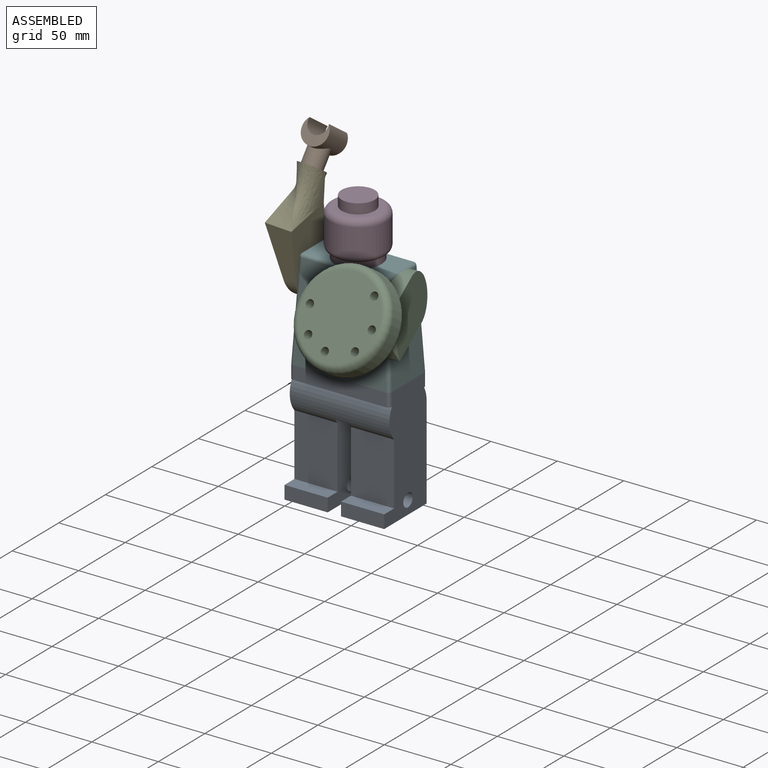
[diagram: assembled view]
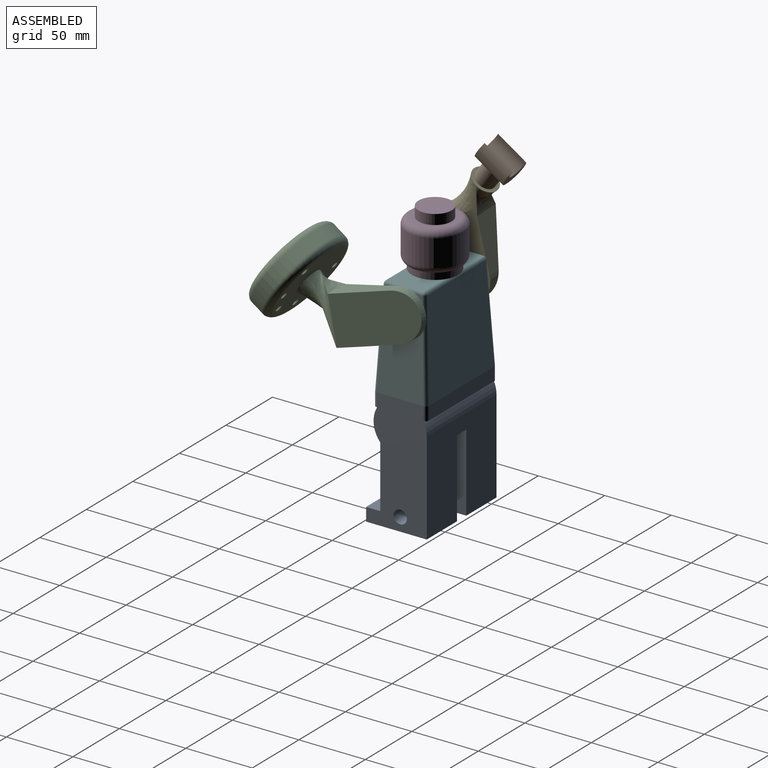
[diagram: assembled view, second angle]
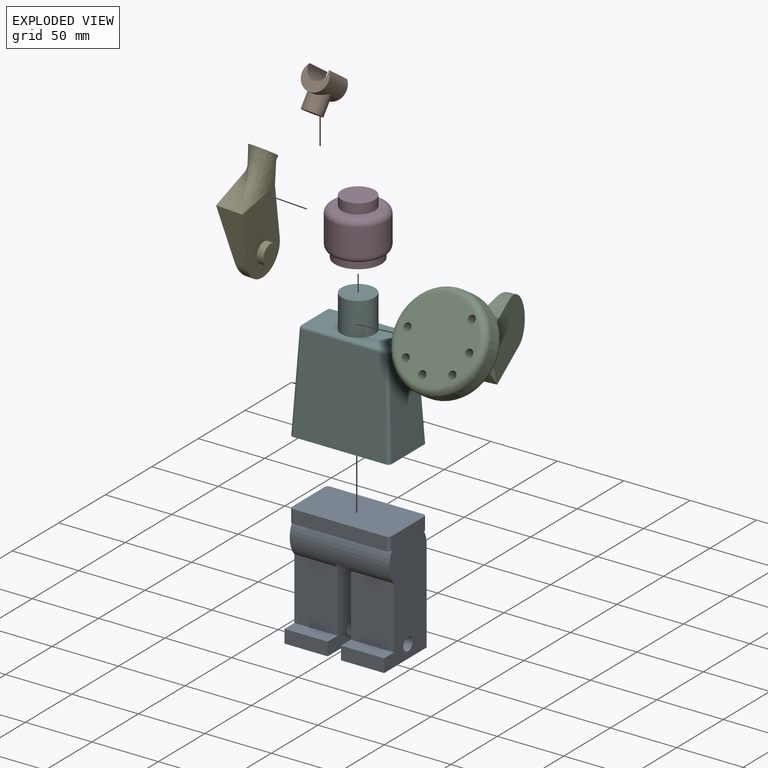
[diagram: exploded view]
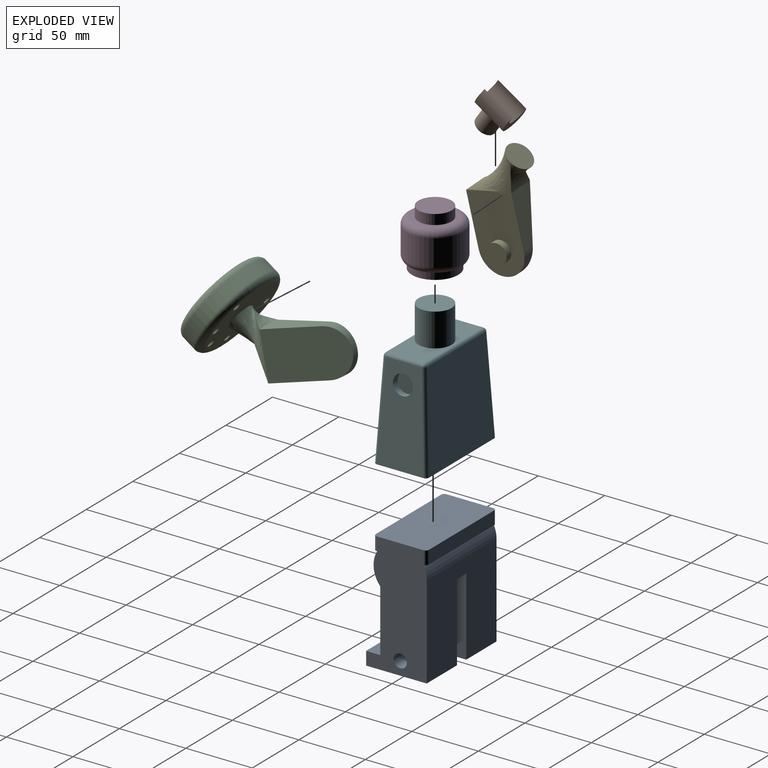
[diagram: exploded view, second angle]
ASSEMBLY  parts=6 mates=8
PART A: 27 faces, bbox 75x45.6x90 mm
  f0: plane 46.77x32.5mm, normal (0,-1,0), area 1520.1mm2, adj f1,f12,f19,f22
  f1: plane 32.5x10.62mm, normal (0,0,1), area 345.1mm2, adj f0,f2,f19,f22
  f2: plane 32.5x10mm, normal (0,-1,0), area 325mm2, adj f1,f3,f19,f22
  f3: plane 45.62x32.5mm, normal (0,0,-1), area 1482.6mm2, adj f2,f5,f19,f22
  f4: cylinder r=5mm len=32.5mm, axis (-1,0,0), area 1021mm2, adj f19,f22
  f5: plane 75x70mm, normal (0,1,0), area 4664.6mm2, adj f3,f6,f16,f18,f19,f20,f21,f22
  f6: cylinder r=20mm len=75mm, axis (-1,0,0), area 785.4mm2, adj f5,f7,f18,f19
  f7: plane 75x2.68mm, normal (0,0,-1), area 198.3mm2, adj f6,f8,f18,f19,f24,f26
  f8: plane 70x10mm, normal (0,1,0), area 700mm2, adj f7,f9,f24,f26
  f9: plane 75x40mm, normal (0,0,1), area 2994.6mm2, adj f8,f10,f18,f19,f23,f24,f25,f26
  f10: plane 70x10mm, normal (0,-1,0), area 700mm2, adj f9,f11,f23,f25
  f11: plane 75x2.68mm, normal (0,0,-1), area 198.3mm2, adj f10,f12,f18,f19,f23,f25
  f12: cylinder r=20mm len=75mm, axis (-1,0,0), area 1833.9mm2, adj f0,f11,f13,f18,f19,f20,f21,f22
  f13: plane 46.77x32.5mm, normal (0,-1,0), area 1520.1mm2, adj f12,f14,f18,f21
  f14: plane 32.5x10.62mm, normal (0,0,1), area 345.1mm2, adj f13,f15,f18,f21
  f15: plane 32.5x10mm, normal (0,-1,0), area 325mm2, adj f14,f16,f18,f21
  f16: plane 45.62x32.5mm, normal (0,0,-1), area 1482.6mm2, adj f5,f15,f18,f21
  f17: cylinder r=5mm len=32.5mm, axis (-1,0,0), area 1021mm2, adj f18,f21
  f18: plane 90x45.62mm, normal (1,0,0), area 3255.6mm2, adj f5,f6,f7,f9,f11,f12,f13,f14
  f19: plane 90x45.62mm, normal (-1,0,0), area 3255.6mm2, adj f0,f1,f2,f3,f4,f5,f6,f7
  f20: cylinder r=52.5mm len=37.11mm, axis (-1,0,0), area 379.4mm2, adj f5,f12,f21,f22
  f21: plane 62.5x45.62mm, normal (-1,0,0), area 2182.2mm2, adj f5,f12,f13,f14,f15,f16,f17,f20
  f22: plane 62.5x45.62mm, normal (1,0,0), area 2182.2mm2, adj f0,f1,f2,f3,f4,f5,f12,f20
  f23: cylinder r=2.5mm len=10mm, axis (0,0,-1), area 39.3mm2, adj f9,f10,f11,f19
  f24: cylinder r=2.5mm len=10mm, axis (0,0,1), area 39.3mm2, adj f7,f8,f9,f19
  f25: cylinder r=2.5mm len=10mm, axis (0,0,1), area 39.3mm2, adj f9,f10,f11,f18
  f26: cylinder r=2.5mm len=10mm, axis (0,0,-1), area 39.3mm2, adj f7,f8,f9,f18
PART B: 6 faces, bbox 20x25x27.8 mm
  f0: cylinder r=10mm len=25mm, axis (0,1,0), area 971.4mm2, adj f1,f2,f3,f4
  f1: cylinder r=7.5mm len=25mm, axis (0,1,0), area 683.8mm2, adj f0,f2,f3
  f2: plane 20x16.88mm, normal (0,-1,0), area 166.6mm2, adj f0,f1
  f3: plane 20x16.88mm, normal (0,1,0), area 166.6mm2, adj f0,f1
  f4: cylinder r=7.5mm len=15mm, axis (0,0,-1), area 591.2mm2, adj f0,f5
  f5: plane 15x15mm, normal (0,0,1), area 176.7mm2, adj f4
PART C: 22 faces, bbox 77.9x117.3x75.8 mm
  f0: plane 60x43.38mm, normal (0.72,0.69,0), area 2395.3mm2, adj f8,f9,f10,f11,f14,f16,f17,f18
  f1: plane 40x20mm, normal (-1,0,0), area 591.3mm2, adj f4,f6,f7,f8
  f2: cylinder r=7.5mm len=15mm, axis (0,0,-1), area 235.6mm2, adj f3,f6
  f3: plane 15x15mm, normal (0,0,-1), area 176.7mm2, adj f2
  f4: cylinder r=17.5mm len=35mm, axis (0,0,-1), area 366.1mm2, adj f1,f5,f6,f7
  f5: plane 40x20mm, normal (1,0,0), area 591.3mm2, adj f4,f6,f7,f10
  f6: plane 57.5x35mm, normal (0,0,-1), area 1704.3mm2, adj f1,f2,f4,f5,f11
  f7: plane 57.5x35mm, normal (0,0.25,0.97), area 1944mm2, adj f1,f4,f5,f9
  f8: bspline ~20.83x20mm, area 255.7mm2, adj f0,f1,f9,f11
  f9: bspline ~46.21x15mm, area 343mm2, adj f0,f7,f8,f10
  f10: bspline ~45.28x20.83mm, area 492.4mm2, adj f0,f5,f9,f11
  f11: bspline ~39.3x28.06mm, area 799.4mm2, adj f0,f6,f8,f10
  f12: cylinder r=35mm len=70mm, axis (0.72,0.69,0), area 2199.1mm2, adj f14,f15
  f13: plane 60x43.38mm, normal (-0.72,-0.69,0), area 2658mm2, adj f15,f16,f17,f18,f19,f20,f21
  f14: torus R=30mm, axis (-0.72,-0.69,0), area 1637.5mm2, adj f0,f12
  f15: torus R=30mm, axis (-0.72,-0.69,0), area 1637.5mm2, adj f12,f13
  f16: bspline ~18.12x17.94mm, area 345.7mm2, adj f0,f13
  f17: bspline ~18.12x17.95mm, area 345.7mm2, adj f0,f13
  f18: bspline ~18.11x17.95mm, area 345.7mm2, adj f0,f13
  f19: bspline ~18.12x17.95mm, area 345.7mm2, adj f0,f13
  f20: bspline ~18.11x17.95mm, area 345.7mm2, adj f0,f13
  f21: bspline ~18.12x17.94mm, area 345.7mm2, adj f0,f13
PART D: 10 faces, bbox 46x46x42.5 mm
  f0: cylinder r=17.5mm len=35mm, axis (0,0,-1), area 549.8mm2, adj f1,f6
  f1: plane 35x35mm, normal (0,0,-1), area 471.2mm2, adj f0,f8
  f2: cylinder r=21.25mm len=42.5mm, axis (0,0,-1), area 2691.6mm2, adj f6,f7
  f3: plane 32.5x32.5mm, normal (0,0,1), area 338.7mm2, adj f4,f7
  f4: cylinder r=12.5mm len=25mm, axis (0,0,-1), area 589mm2, adj f3,f5
  f5: plane 25x25mm, normal (0,0,1), area 490.9mm2, adj f4
  f6: torus R=16.25mm, axis (0,0,-1), area 825mm2, adj f0,f2
  f7: torus R=16.25mm, axis (0,0,1), area 959mm2, adj f2,f3
  f8: cylinder r=12.5mm len=30mm, axis (0,0,-1), area 2356.2mm2, adj f1,f9
  f9: plane 25x25mm, normal (0,0,-1), area 490.9mm2, adj f8
PART E: 12 faces, bbox 46.2x85.6x25 mm
  f0: plane 40x20mm, normal (-1,0,0), area 591.3mm2, adj f3,f5,f6,f8
  f1: cylinder r=7.5mm len=15mm, axis (0,0,1), area 235.6mm2, adj f2,f5
  f2: plane 15x15mm, normal (0,0,1), area 176.7mm2, adj f1
  f3: cylinder r=17.5mm len=35mm, axis (0,0,1), area 366.1mm2, adj f0,f4,f5,f6
  f4: plane 40x20mm, normal (1,0,0), area 591.3mm2, adj f3,f5,f6,f10
  f5: plane 57.5x35mm, normal (0,0,1), area 1704.3mm2, adj f0,f1,f3,f4,f11
  f6: plane 57.5x35mm, normal (0,0.25,-0.97), area 1944mm2, adj f0,f3,f4,f9
  f7: plane 20x14.46mm, normal (-0.72,-0.69,0), area 314.2mm2, adj f8,f9,f10,f11
  f8: bspline ~20.83x20mm, area 255.7mm2, adj f0,f7,f9,f11
  f9: bspline ~46.21x15mm, area 343mm2, adj f6,f7,f8,f10
  f10: bspline ~45.28x20.83mm, area 492.4mm2, adj f4,f7,f9,f11
  f11: bspline ~39.3x28.06mm, area 799.4mm2, adj f5,f7,f8,f10
PART F: 24 faces, bbox 75x40x100.1 mm
  f0: plane 72.63x70.01mm, normal (0,-1,0.05), area 4814.8mm2, adj f5,f12,f16,f18
  f1: plane 72.63x35.01mm, normal (1,0,0.05), area 2092.5mm2, adj f5,f8,f13,f18,f20
  f2: plane 72.63x70.01mm, normal (0,1,0.05), area 4814.8mm2, adj f5,f15,f20,f22
  f3: plane 72.63x35.01mm, normal (-1,0,0.05), area 2092.5mm2, adj f5,f10,f14,f16,f22
  f4: plane 62.39x27.39mm, normal (0,0,1), area 1218.3mm2, adj f6,f12,f13,f14,f15
  f5: plane 75x40mm, normal (0,0,-1), area 2994.7mm2, adj f0,f1,f2,f3,f16,f18,f20,f22
  f6: cylinder r=12.5mm len=25mm, axis (0,0,-1), area 1963.5mm2, adj f4,f7
  f7: plane 25x25mm, normal (0,0,1), area 490.9mm2, adj f6
  f8: cylinder r=7.5mm len=15.24mm, axis (1,0,0.05), area 235.6mm2, adj f1,f9
  f9: plane 15x14.98mm, normal (1,0,0.05), area 176.7mm2, adj f8
  f10: cylinder r=7.5mm len=15.24mm, axis (-1,0,0.05), area 235.6mm2, adj f3,f11
  f11: plane 15x14.98mm, normal (-1,0,0.05), area 176.7mm2, adj f10
  f12: cylinder r=2.5mm len=62.39mm, axis (-1,0,0), area 236.9mm2, adj f0,f4,f17,f19
  f13: cylinder r=2.5mm len=27.39mm, axis (0,1,0), area 104mm2, adj f1,f4,f19,f21
  f14: cylinder r=2.5mm len=27.39mm, axis (0,1,0), area 104mm2, adj f3,f4,f17,f23
  f15: cylinder r=2.5mm len=62.39mm, axis (-1,0,0), area 236.9mm2, adj f2,f4,f21,f23
  f16: cylinder r=2.5mm len=72.74mm, axis (-0.05,-0.05,-1), area 285.6mm2, adj f0,f3,f5,f17
  f17: sphere r=2.5mm, area 9.2mm2, adj f12,f14,f16
  f18: cylinder r=2.5mm len=72.74mm, axis (0.05,-0.05,-1), area 285.6mm2, adj f0,f1,f5,f19
  f19: sphere r=2.5mm, area 9.2mm2, adj f12,f13,f18
  f20: cylinder r=2.5mm len=72.74mm, axis (0.05,0.05,-1), area 285.6mm2, adj f1,f2,f5,f21
  f21: sphere r=2.5mm, area 9.2mm2, adj f13,f15,f20
  f22: cylinder r=2.5mm len=72.74mm, axis (-0.05,0.05,-1), area 285.6mm2, adj f2,f3,f5,f23
  f23: sphere r=2.5mm, area 9.2mm2, adj f14,f15,f22
PLACE A t=(-41.88,3.11,-14.06)mm
PLACE B rot(axis=(1,0.01,-0.03),145.3deg) t=(-82.36,20.77,125.19)mm
PLACE C rot(axis=(0.11,0.99,0.12),87.8deg) t=(-12.39,3.11,48.2)mm
PLACE D t=(-41.88,3.11,65.94)mm
PLACE E rot(axis=(-0.54,0.66,-0.51),115.5deg) t=(-71.37,3.11,48.2)mm
PLACE F t=(-41.88,3.11,-9.06)mm fixed
MATE cylindrical D.f8 <-> F.f6  axis (0,0,-1) through (-41.88,3.11,80.94)mm
MATE revolute C.f2 <-> F.f8  axis (-1,0,-0.05) through (-12.39,3.11,48.2)mm
MATE planar D.f2 <-> F.f4  axis (0,0,-1) through (-41.88,3.11,65.94)mm
MATE revolute E.f1 <-> F.f10  axis (1,0,-0.05) through (-71.37,3.11,48.2)mm
MATE planar A.f9 <-> F.f6  axis (0,0,1) through (-41.88,3.11,-9.06)mm
MATE slider E.f7 <-> B.f4  axis (0.04,0.57,0.82) through (-83,12.23,112.87)mm
MATE slider B.f4 <-> E.f7  axis (-0.04,-0.57,-0.82) through (-83,12.23,112.87)mm
MATE slider B.f4 <-> E.f7  axis (0.04,0.57,0.82) through (-83,12.23,112.87)mm
